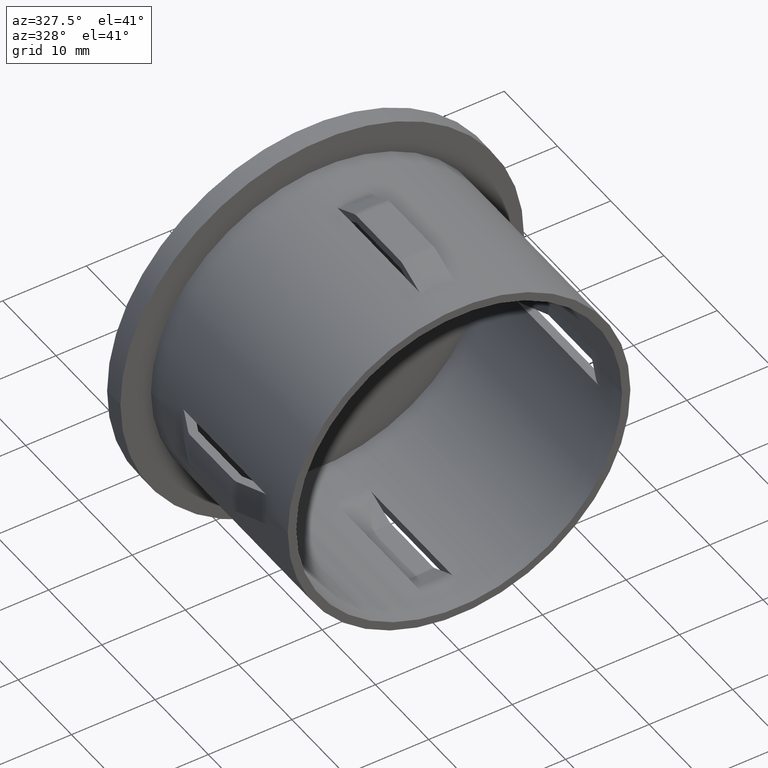
[diagram: clean part render]
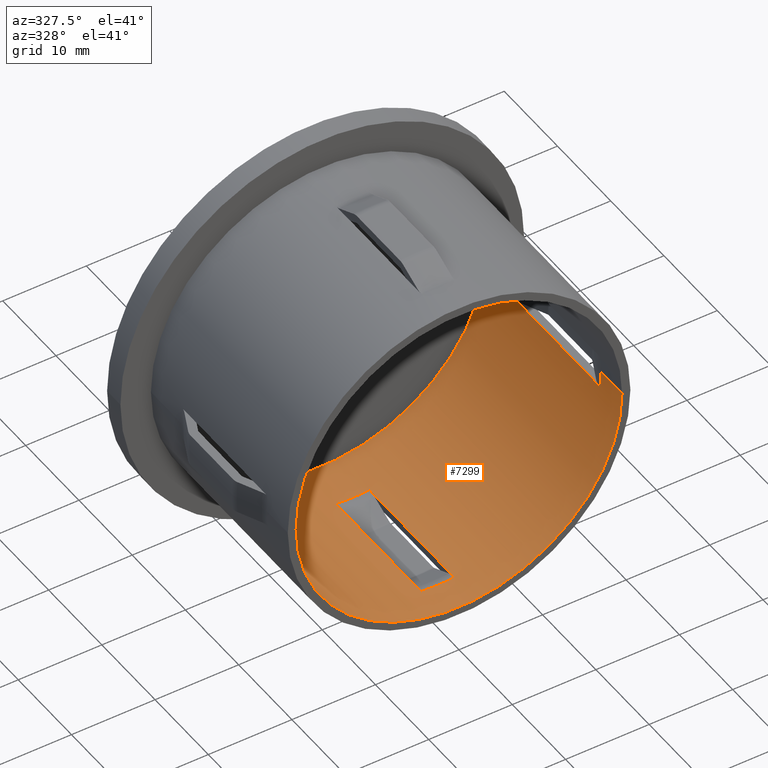
[diagram: same view with one face highlighted and labeled with its STEP entity id]
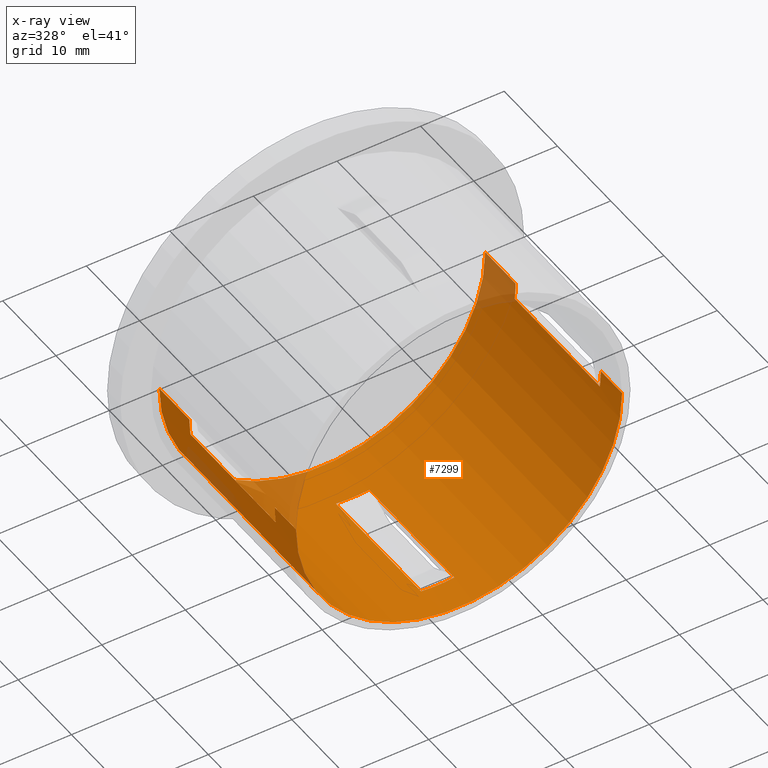
[diagram: x-ray of the same camera — body ghosted, the highlighted face saturated]
A machine part, auxiliary view. The second image highlights one B-rep face of the part: STEP entity #7299.
The next image is the same camera in x-ray: the body ghosted, the highlighted face saturated — about 6% of this face is hidden behind the body in this view.
In plain terms, the highlighted cylindrical surface (partial cylindrical patch) has radius 19.5 mm, axis along (-0, 1, -0).
Its self-contained STEP definition (entity closure, byte-faithful):
#15 = CARTESIAN_POINT ( 'NONE',  ( -19.50000000000000400, 28.19999999999999600, 0.0000000000000000000 ) ) ;
#72 = CARTESIAN_POINT ( 'NONE',  ( 2.000000000000007500, 3.999999999999996400, -19.39716474127082400 ) ) ;
#174 = AXIS2_PLACEMENT_3D ( 'NONE', #12487, #4882, #12538 ) ;
#181 = ORIENTED_EDGE ( 'NONE', *, *, #13112, .T. ) ;
#238 = EDGE_CURVE ( 'NONE', #11639, #8793, #9881, .T. ) ;
#319 = VERTEX_POINT ( 'NONE', #748 ) ;
#344 = EDGE_CURVE ( 'NONE', #7572, #2381, #13115, .T. ) ;
#612 = DIRECTION ( 'NONE',  ( -1.714505518806297100E-016, 1.000000000000000000, -0.0000000000000000000 ) ) ;
#748 = CARTESIAN_POINT ( 'NONE',  ( 19.50000000000000400, 4.000000000000000000, 2.388061258337339300E-015 ) ) ;
#775 = LINE ( 'NONE', #1913, #12073 ) ;
#939 = ORIENTED_EDGE ( 'NONE', *, *, #8309, .T. ) ;
#1004 = EDGE_CURVE ( 'NONE', #6465, #5118, #6959, .T. ) ;
#1065 = CARTESIAN_POINT ( 'NONE',  ( -19.50000000000000000, 25.69999999999999200, 0.0000000000000000000 ) ) ;
#1142 = VECTOR ( 'NONE', #3980, 1000.000000000000000 ) ;
#1238 = EDGE_CURVE ( 'NONE', #319, #12973, #9001, .T. ) ;
#1261 = CARTESIAN_POINT ( 'NONE',  ( -19.49999999999999600, -6.812732713625892700E-015, 0.0000000000000000000 ) ) ;
#1287 = LINE ( 'NONE', #10779, #9841 ) ;
#1404 = ORIENTED_EDGE ( 'NONE', *, *, #8973, .F. ) ;
#1407 = ORIENTED_EDGE ( 'NONE', *, *, #5134, .T. ) ;
#1576 = DIRECTION ( 'NONE',  ( -1.714505518806297100E-016, 1.000000000000000000, -0.0000000000000000000 ) ) ;
#1633 = DIRECTION ( 'NONE',  ( -1.714505518806297100E-016, 1.000000000000000000, -0.0000000000000000000 ) ) ;
#1785 = ORIENTED_EDGE ( 'NONE', *, *, #9499, .F. ) ;
#1817 = CIRCLE ( 'NONE', #3138, 19.50000000000000400 ) ;
#1905 = CARTESIAN_POINT ( 'NONE',  ( 19.50000000000000400, 19.99999999999999600, 2.388061258337339300E-015 ) ) ;
#1913 = CARTESIAN_POINT ( 'NONE',  ( -1.999999999999996200, 51.72464896776082800, -19.39716474127082400 ) ) ;
#1931 = EDGE_LOOP ( 'NONE', ( #13509, #8419, #13469, #1785, #1404, #1407, #4980, #3610, #2044, #939, #8502, #11462 ) ) ;
#1951 = DIRECTION ( 'NONE',  ( -1.000000000000000000, -1.779203565104417100E-016, 0.0000000000000000000 ) ) ;
#1999 = EDGE_CURVE ( 'NONE', #2381, #7438, #775, .T. ) ;
#2042 = LINE ( 'NONE', #4418, #10914 ) ;
#2044 = ORIENTED_EDGE ( 'NONE', *, *, #5368, .F. ) ;
#2281 = VECTOR ( 'NONE', #11393, 1000.000000000000000 ) ;
#2283 = DIRECTION ( 'NONE',  ( -1.714505518806297100E-016, 1.000000000000000000, -0.0000000000000000000 ) ) ;
#2350 = VECTOR ( 'NONE', #7600, 1000.000000000000000 ) ;
#2381 = VERTEX_POINT ( 'NONE', #11971 ) ;
#2686 = DIRECTION ( 'NONE',  ( -1.714505518806297100E-016, 1.000000000000000000, -0.0000000000000000000 ) ) ;
#2862 = CARTESIAN_POINT ( 'NONE',  ( 3.904173995681768100E-015, 3.999999999999996400, 0.0000000000000000000 ) ) ;
#3034 = CARTESIAN_POINT ( 'NONE',  ( -19.39716474127082800, 19.99999999999998900, -2.000000000000000400 ) ) ;
#3138 = AXIS2_PLACEMENT_3D ( 'NONE', #8057, #8996, #13423 ) ;
#3532 = CARTESIAN_POINT ( 'NONE',  ( 19.39716474127082800, 19.99999999999998900, -2.000000000000000000 ) ) ;
#3588 = DIRECTION ( 'NONE',  ( -1.714505518806297100E-016, 1.000000000000000000, -0.0000000000000000000 ) ) ;
#3610 = ORIENTED_EDGE ( 'NONE', *, *, #1004, .F. ) ;
#3817 = CARTESIAN_POINT ( 'NONE',  ( -1.999999999999993100, 3.999999999999996400, -19.39716474127082400 ) ) ;
#3885 = CIRCLE ( 'NONE', #174, 19.50000000000000400 ) ;
#3980 = DIRECTION ( 'NONE',  ( -1.714505518806297100E-016, 1.000000000000000000, -0.0000000000000000000 ) ) ;
#4097 = DIRECTION ( 'NONE',  ( 0.0000000000000000000, -1.000000000000000000, 0.0000000000000000000 ) ) ;
#4221 = FACE_BOUND ( 'NONE', #9197, .T. ) ;
#4240 = DIRECTION ( 'NONE',  ( -1.714505518806297100E-016, 1.000000000000000000, -0.0000000000000000000 ) ) ;
#4280 = CARTESIAN_POINT ( 'NONE',  ( 19.50000000000000400, -1.261611902813349400E-016, 2.388061258337339300E-015 ) ) ;
#4418 = CARTESIAN_POINT ( 'NONE',  ( 19.50000000000000400, 28.20000000000000300, 2.388061258337339300E-015 ) ) ;
#4481 = DIRECTION ( 'NONE',  ( -1.714505518806297100E-016, 1.000000000000000000, -0.0000000000000000000 ) ) ;
#4658 = EDGE_CURVE ( 'NONE', #11639, #319, #8776, .T. ) ;
#4882 = DIRECTION ( 'NONE',  ( -1.714505518806297100E-016, 1.000000000000000000, -0.0000000000000000000 ) ) ;
#4949 = VERTEX_POINT ( 'NONE', #3034 ) ;
#4948 = DIRECTION ( 'NONE',  ( -1.000000000000000000, -1.714505518806296900E-016, 0.0000000000000000000 ) ) ;
#4980 = ORIENTED_EDGE ( 'NONE', *, *, #12876, .T. ) ;
#5118 = VERTEX_POINT ( 'NONE', #1065 ) ;
#5134 = EDGE_CURVE ( 'NONE', #7007, #10632, #2042, .T. ) ;
#5171 = ORIENTED_EDGE ( 'NONE', *, *, #1999, .F. ) ;
#5177 = CARTESIAN_POINT ( 'NONE',  ( -19.39716474127082100, 3.999999999999993300, -1.999999999999999600 ) ) ;
#5276 = DIRECTION ( 'NONE',  ( -1.714505518806297100E-016, 1.000000000000000000, -0.0000000000000000000 ) ) ;
#5368 = EDGE_CURVE ( 'NONE', #4949, #6465, #3885, .T. ) ;
#5389 = VERTEX_POINT ( 'NONE', #9284 ) ;
#5425 = FACE_OUTER_BOUND ( 'NONE', #1931, .T. ) ;
#5817 = AXIS2_PLACEMENT_3D ( 'NONE', #10793, #4240, #1951 ) ;
#5904 = AXIS2_PLACEMENT_3D ( 'NONE', #6475, #5276, #6378 ) ;
#6320 = ORIENTED_EDGE ( 'NONE', *, *, #344, .F. ) ;
#6378 = DIRECTION ( 'NONE',  ( -1.000000000000000000, -1.779203565104417600E-016, 0.0000000000000000000 ) ) ;
#6381 = CIRCLE ( 'NONE', #12028, 19.50000000000000000 ) ;
#6465 = VERTEX_POINT ( 'NONE', #11869 ) ;
#6475 = CARTESIAN_POINT ( 'NONE',  ( 1.836970198721037800E-016, 25.69999999999999600, 0.0000000000000000000 ) ) ;
#6755 = CARTESIAN_POINT ( 'NONE',  ( 19.50000000000000000, 25.69999999999999900, 2.388061258337338900E-015 ) ) ;
#6882 = CARTESIAN_POINT ( 'NONE',  ( -2.449293598294708900E-016, 28.19999999999999900, 0.0000000000000000000 ) ) ;
#6959 = LINE ( 'NONE', #12431, #1142 ) ;
#6967 = AXIS2_PLACEMENT_3D ( 'NONE', #6882, #3588, #9074 ) ;
#7007 = VERTEX_POINT ( 'NONE', #1905 ) ;
#7299 = ADVANCED_FACE ( 'NONE', ( #4221, #5425 ), #13955, .F. ) ;
#7317 = DIRECTION ( 'NONE',  ( -1.000000000000000000, -1.779203565104417600E-016, 0.0000000000000000000 ) ) ;
#7438 = VERTEX_POINT ( 'NONE', #3817 ) ;
#7572 = VERTEX_POINT ( 'NONE', #9591 ) ;
#7579 = EDGE_CURVE ( 'NONE', #12753, #5389, #8170, .T. ) ;
#7600 = DIRECTION ( 'NONE',  ( 0.0000000000000000000, -1.000000000000000000, 0.0000000000000000000 ) ) ;
#7704 = DIRECTION ( 'NONE',  ( -1.000000000000000000, -1.779203565104417600E-016, 0.0000000000000000000 ) ) ;
#7786 = VECTOR ( 'NONE', #2283, 1000.000000000000000 ) ;
#8057 = CARTESIAN_POINT ( 'NONE',  ( 1.160965165591693700E-015, 19.99999999999999300, 0.0000000000000000000 ) ) ;
#8170 = CIRCLE ( 'NONE', #13263, 19.50000000000000000 ) ;
#8309 = EDGE_CURVE ( 'NONE', #4949, #12753, #12577, .T. ) ;
#8419 = ORIENTED_EDGE ( 'NONE', *, *, #4658, .T. ) ;
#8502 = ORIENTED_EDGE ( 'NONE', *, *, #7579, .T. ) ;
#8720 = DIRECTION ( 'NONE',  ( -1.714505518806297100E-016, 1.000000000000000000, -0.0000000000000000000 ) ) ;
#8764 = DIRECTION ( 'NONE',  ( 0.0000000000000000000, -1.000000000000000000, 0.0000000000000000000 ) ) ;
#8776 = LINE ( 'NONE', #9218, #10144 ) ;
#8793 = VERTEX_POINT ( 'NONE', #1261 ) ;
#8973 = EDGE_CURVE ( 'NONE', #7007, #13761, #1817, .T. ) ;
#8996 = DIRECTION ( 'NONE',  ( -1.714505518806297100E-016, 1.000000000000000000, -0.0000000000000000000 ) ) ;
#9001 = CIRCLE ( 'NONE', #9461, 19.50000000000000000 ) ;
#9074 = DIRECTION ( 'NONE',  ( -1.000000000000000000, -1.779203565104417100E-016, 0.0000000000000000000 ) ) ;
#9197 = EDGE_LOOP ( 'NONE', ( #181, #12206, #5171, #6320 ) ) ;
#9218 = CARTESIAN_POINT ( 'NONE',  ( 19.50000000000000400, 28.20000000000000300, 2.388061258337339300E-015 ) ) ;
#9284 = CARTESIAN_POINT ( 'NONE',  ( -19.49999999999999600, 3.999999999999993300, 0.0000000000000000000 ) ) ;
#9361 = CARTESIAN_POINT ( 'NONE',  ( 3.904173995681768100E-015, 3.999999999999996400, 0.0000000000000000000 ) ) ;
#9461 = AXIS2_PLACEMENT_3D ( 'NONE', #9361, #1633, #12701 ) ;
#9467 = LINE ( 'NONE', #15, #7786 ) ;
#9499 = EDGE_CURVE ( 'NONE', #13761, #12973, #1287, .T. ) ;
#9591 = CARTESIAN_POINT ( 'NONE',  ( 2.000000000000008000, 19.99999999999999300, -19.39716474127082800 ) ) ;
#9841 = VECTOR ( 'NONE', #8764, 1000.000000000000000 ) ;
#9881 = CIRCLE ( 'NONE', #10666, 19.50000000000000000 ) ;
#10104 = CARTESIAN_POINT ( 'NONE',  ( 19.39716474127082800, 4.000000000000000000, -1.999999999999999600 ) ) ;
#10144 = VECTOR ( 'NONE', #2686, 1000.000000000000000 ) ;
#10301 = CIRCLE ( 'NONE', #5904, 19.50000000000000000 ) ;
#10594 = EDGE_CURVE ( 'NONE', #8793, #5389, #9467, .T. ) ;
#10632 = VERTEX_POINT ( 'NONE', #6755 ) ;
#10666 = AXIS2_PLACEMENT_3D ( 'NONE', #11323, #1576, #4948 ) ;
#10779 = CARTESIAN_POINT ( 'NONE',  ( 19.39716474127082800, 51.72464896776082800, -2.000000000000000000 ) ) ;
#10793 = CARTESIAN_POINT ( 'NONE',  ( 1.160965165591693700E-015, 19.99999999999999300, 0.0000000000000000000 ) ) ;
#10914 = VECTOR ( 'NONE', #8720, 1000.000000000000000 ) ;
#11036 = CARTESIAN_POINT ( 'NONE',  ( 3.904173995681768100E-015, 3.999999999999996400, 0.0000000000000000000 ) ) ;
#11323 = CARTESIAN_POINT ( 'NONE',  ( 4.589976203204287100E-015, -3.469446951953614200E-015, 0.0000000000000000000 ) ) ;
#11393 = DIRECTION ( 'NONE',  ( 0.0000000000000000000, -1.000000000000000000, 0.0000000000000000000 ) ) ;
#11462 = ORIENTED_EDGE ( 'NONE', *, *, #10594, .F. ) ;
#11639 = VERTEX_POINT ( 'NONE', #4280 ) ;
#11839 = CARTESIAN_POINT ( 'NONE',  ( -19.39716474127082100, 51.72464896776082800, -2.000000000000000000 ) ) ;
#11869 = CARTESIAN_POINT ( 'NONE',  ( -19.50000000000000400, 19.99999999999998900, 0.0000000000000000000 ) ) ;
#11971 = CARTESIAN_POINT ( 'NONE',  ( -1.999999999999996200, 19.99999999999998900, -19.39716474127082400 ) ) ;
#12028 = AXIS2_PLACEMENT_3D ( 'NONE', #2862, #612, #7317 ) ;
#12073 = VECTOR ( 'NONE', #4097, 1000.000000000000000 ) ;
#12206 = ORIENTED_EDGE ( 'NONE', *, *, #12235, .T. ) ;
#12235 = EDGE_CURVE ( 'NONE', #13984, #7438, #6381, .T. ) ;
#12431 = CARTESIAN_POINT ( 'NONE',  ( -19.50000000000000400, 28.19999999999999600, 0.0000000000000000000 ) ) ;
#12487 = CARTESIAN_POINT ( 'NONE',  ( 1.160965165591693700E-015, 19.99999999999999300, 0.0000000000000000000 ) ) ;
#12538 = DIRECTION ( 'NONE',  ( -1.000000000000000000, -1.779203565104417100E-016, 0.0000000000000000000 ) ) ;
#12577 = LINE ( 'NONE', #11839, #2350 ) ;
#12701 = DIRECTION ( 'NONE',  ( -1.000000000000000000, -1.779203565104417600E-016, 0.0000000000000000000 ) ) ;
#12753 = VERTEX_POINT ( 'NONE', #5177 ) ;
#12852 = LINE ( 'NONE', #13605, #2281 ) ;
#12876 = EDGE_CURVE ( 'NONE', #10632, #5118, #10301, .T. ) ;
#12973 = VERTEX_POINT ( 'NONE', #10104 ) ;
#13112 = EDGE_CURVE ( 'NONE', #7572, #13984, #12852, .T. ) ;
#13115 = CIRCLE ( 'NONE', #5817, 19.50000000000000400 ) ;
#13263 = AXIS2_PLACEMENT_3D ( 'NONE', #11036, #4481, #7704 ) ;
#13423 = DIRECTION ( 'NONE',  ( -1.000000000000000000, -1.779203565104417100E-016, 0.0000000000000000000 ) ) ;
#13469 = ORIENTED_EDGE ( 'NONE', *, *, #1238, .T. ) ;
#13509 = ORIENTED_EDGE ( 'NONE', *, *, #238, .F. ) ;
#13605 = CARTESIAN_POINT ( 'NONE',  ( 2.000000000000004900, 51.72464896776082800, -19.39716474127082400 ) ) ;
#13761 = VERTEX_POINT ( 'NONE', #3532 ) ;
#13955 = CYLINDRICAL_SURFACE ( 'NONE', #6967, 19.50000000000000400 ) ;
#13984 = VERTEX_POINT ( 'NONE', #72 ) ;